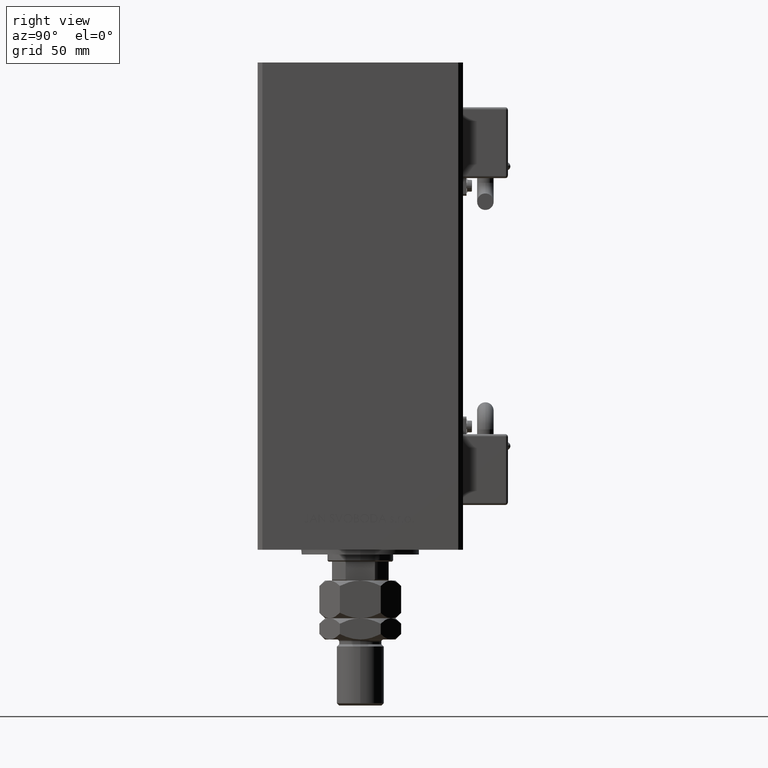
[diagram: clean part render]
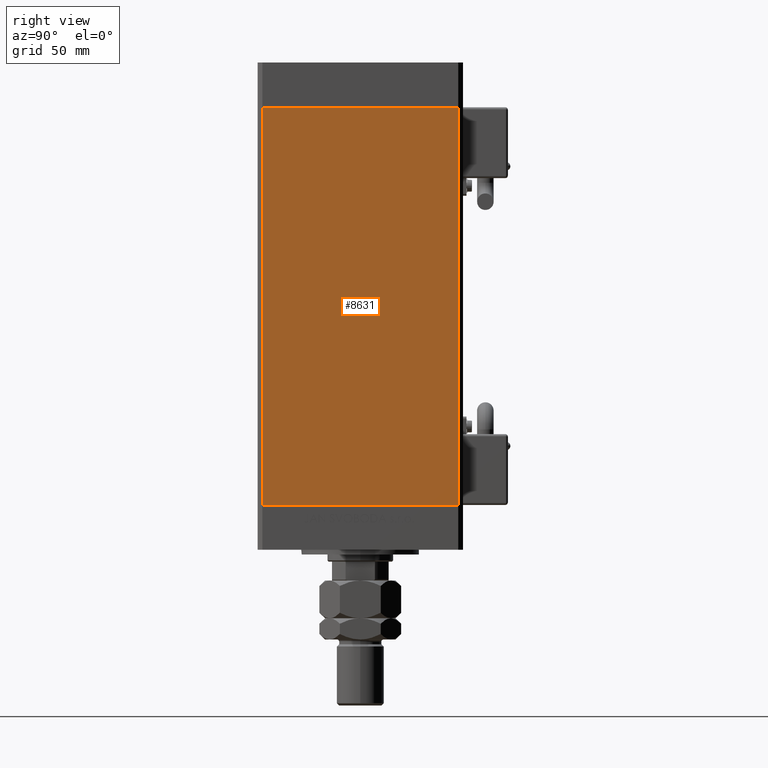
[diagram: same view with one face highlighted and labeled with its STEP entity id]
A machine part, right view. The second image highlights one B-rep face of the part: STEP entity #8631.
In plain terms, the highlighted planar face has unit normal (1, -0, 0).
Its self-contained STEP definition (entity closure, byte-faithful):
#880 = DIRECTION ( 'NONE',  ( -3.344045254895050973E-16, -1.000000000000000000, 0.000000000000000000 ) ) ;
#5783 = EDGE_CURVE ( 'NONE', #13876, #20176, #14428, .T. ) ;
#7207 = ORIENTED_EDGE ( 'NONE', *, *, #31066, .T. ) ;
#8631 = ADVANCED_FACE ( 'NONE', ( #31156 ), #30619, .T. ) ;
#9070 = CARTESIAN_POINT ( 'NONE',  ( 50.00000000000001421, 41.49999999999999289, 0.000000000000000000 ) ) ;
#12429 = EDGE_CURVE ( 'NONE', #20176, #33135, #29919, .T. ) ;
#13876 = VERTEX_POINT ( 'NONE', #21228 ) ;
#14428 = LINE ( 'NONE', #43556, #28976 ) ;
#20176 = VERTEX_POINT ( 'NONE', #9070 ) ;
#21228 = CARTESIAN_POINT ( 'NONE',  ( 50.00000000000001421, 41.49999999999999289, 168.5000000000000000 ) ) ;
#22464 = EDGE_CURVE ( 'NONE', #13876, #29095, #42238, .T. ) ;
#22708 = DIRECTION ( 'NONE',  ( 3.344045254895050973E-16, 1.000000000000000000, 0.000000000000000000 ) ) ;
#23156 = DIRECTION ( 'NONE',  ( -0.000000000000000000, -0.000000000000000000, -1.000000000000000000 ) ) ;
#23531 = VECTOR ( 'NONE', #24725, 1000.000000000000000 ) ;
#23707 = ORIENTED_EDGE ( 'NONE', *, *, #22464, .T. ) ;
#24725 = DIRECTION ( 'NONE',  ( -0.000000000000000000, -0.000000000000000000, -1.000000000000000000 ) ) ;
#25191 = EDGE_LOOP ( 'NONE', ( #32440, #53155, #23707, #7207 ) ) ;
#28976 = VECTOR ( 'NONE', #23156, 1000.000000000000000 ) ;
#29095 = VERTEX_POINT ( 'NONE', #53472 ) ;
#29127 = VECTOR ( 'NONE', #33738, 1000.000000000000000 ) ;
#29919 = LINE ( 'NONE', #42157, #29127 ) ;
#30619 = PLANE ( 'NONE',  #50654 ) ;
#31066 = EDGE_CURVE ( 'NONE', #29095, #33135, #50271, .T. ) ;
#31156 = FACE_OUTER_BOUND ( 'NONE', #25191, .T. ) ;
#32440 = ORIENTED_EDGE ( 'NONE', *, *, #12429, .F. ) ;
#32868 = VECTOR ( 'NONE', #880, 1000.000000000000000 ) ;
#33135 = VERTEX_POINT ( 'NONE', #49410 ) ;
#33738 = DIRECTION ( 'NONE',  ( -3.344045254895050973E-16, -1.000000000000000000, 0.000000000000000000 ) ) ;
#38167 = CARTESIAN_POINT ( 'NONE',  ( 50.00000000000001421, 41.49999999999999289, 168.5000000000000000 ) ) ;
#42157 = CARTESIAN_POINT ( 'NONE',  ( 50.00000000000001421, 41.49999999999999289, 0.000000000000000000 ) ) ;
#42238 = LINE ( 'NONE', #38167, #32868 ) ;
#43556 = CARTESIAN_POINT ( 'NONE',  ( 50.00000000000001421, 41.49999999999999289, 168.5000000000000000 ) ) ;
#47183 = DIRECTION ( 'NONE',  ( 1.000000000000000000, -3.344045254895050973E-16, 0.000000000000000000 ) ) ;
#49410 = CARTESIAN_POINT ( 'NONE',  ( 49.99999999999998579, -41.49999999999999289, 0.000000000000000000 ) ) ;
#50271 = LINE ( 'NONE', #53557, #23531 ) ;
#50654 = AXIS2_PLACEMENT_3D ( 'NONE', #51268, #47183, #22708 ) ;
#51268 = CARTESIAN_POINT ( 'NONE',  ( 50.00000000000001421, 41.49999999999999289, 168.5000000000000000 ) ) ;
#53155 = ORIENTED_EDGE ( 'NONE', *, *, #5783, .F. ) ;
#53472 = CARTESIAN_POINT ( 'NONE',  ( 49.99999999999998579, -41.49999999999999289, 168.5000000000000000 ) ) ;
#53557 = CARTESIAN_POINT ( 'NONE',  ( 49.99999999999998579, -41.49999999999999289, 168.5000000000000000 ) ) ;